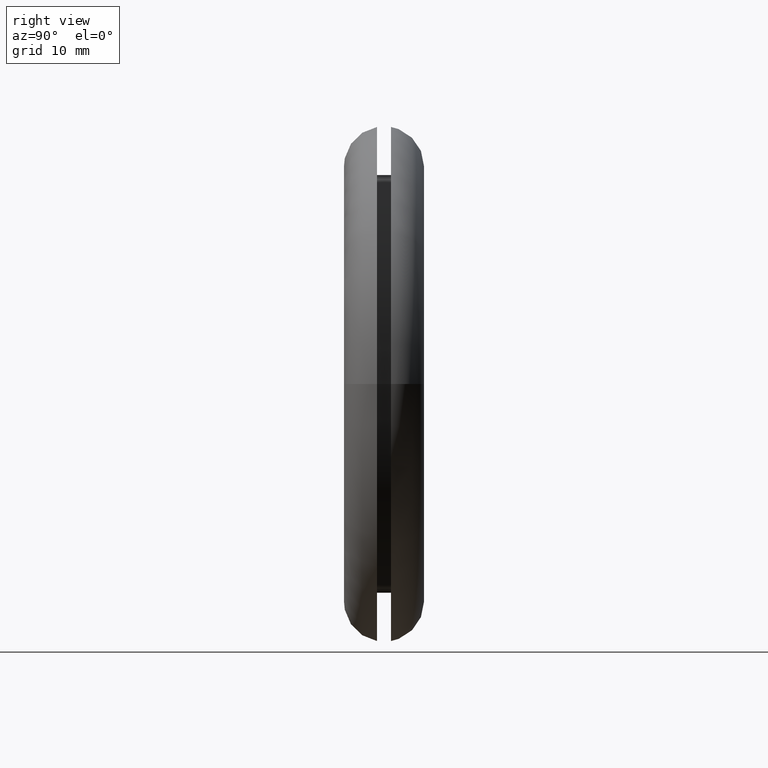
[diagram: clean part render]
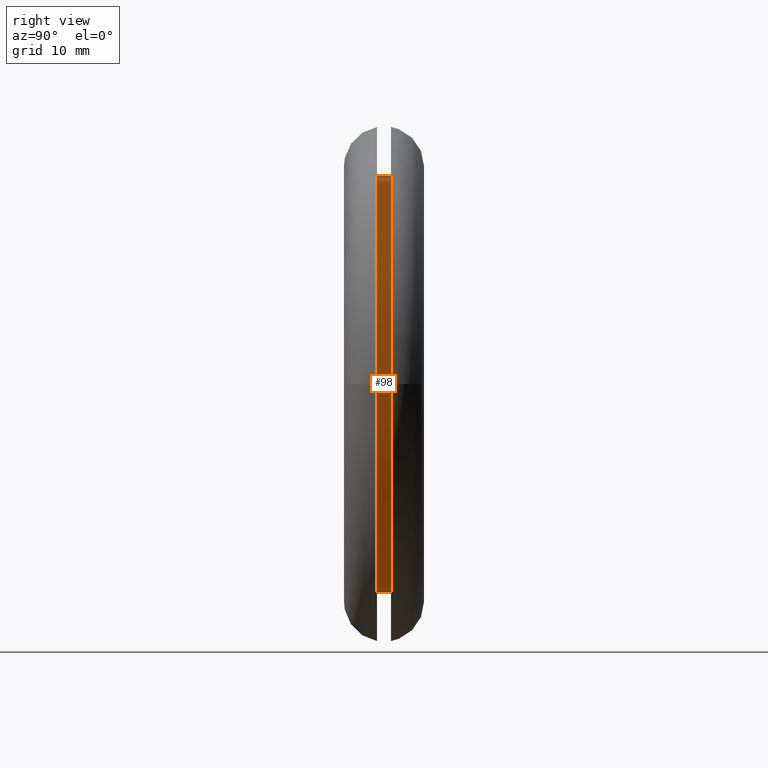
[diagram: same view with one face highlighted and labeled with its STEP entity id]
A machine part, right view. The second image highlights one B-rep face of the part: STEP entity #98.
In plain terms, the highlighted cylindrical surface (bore or boss wall) has radius 30 mm, axis along (0, 1, 0).
Its self-contained STEP definition (entity closure, byte-faithful):
#23=FACE_BOUND('',#42,.T.);
#31=FACE_OUTER_BOUND('',#41,.T.);
#41=EDGE_LOOP('',(#81));
#42=EDGE_LOOP('',(#82));
#56=CIRCLE('',#112,30.);
#57=CIRCLE('',#113,30.);
#64=VERTEX_POINT('',#168);
#65=VERTEX_POINT('',#170);
#72=EDGE_CURVE('',#64,#64,#56,.T.);
#73=EDGE_CURVE('',#65,#65,#57,.T.);
#81=ORIENTED_EDGE('',*,*,#72,.T.);
#82=ORIENTED_EDGE('',*,*,#73,.F.);
#95=CYLINDRICAL_SURFACE('',#111,30.);
#98=ADVANCED_FACE('',(#31,#23),#95,.T.);
#111=AXIS2_PLACEMENT_3D('',#167,#134,#135);
#112=AXIS2_PLACEMENT_3D('',#169,#136,#137);
#113=AXIS2_PLACEMENT_3D('',#171,#138,#139);
#134=DIRECTION('center_axis',(0.,1.,0.));
#135=DIRECTION('ref_axis',(1.,0.,0.));
#136=DIRECTION('center_axis',(0.,1.,0.));
#137=DIRECTION('ref_axis',(1.,0.,0.));
#138=DIRECTION('center_axis',(0.,1.,0.));
#139=DIRECTION('ref_axis',(1.,0.,0.));
#167=CARTESIAN_POINT('Origin',(0.,5.75,0.));
#168=CARTESIAN_POINT('',(30.,4.75000000000001,0.));
#169=CARTESIAN_POINT('Origin',(0.,4.75000000000001,0.));
#170=CARTESIAN_POINT('',(30.,6.75,0.));
#171=CARTESIAN_POINT('Origin',(0.,6.75,0.));